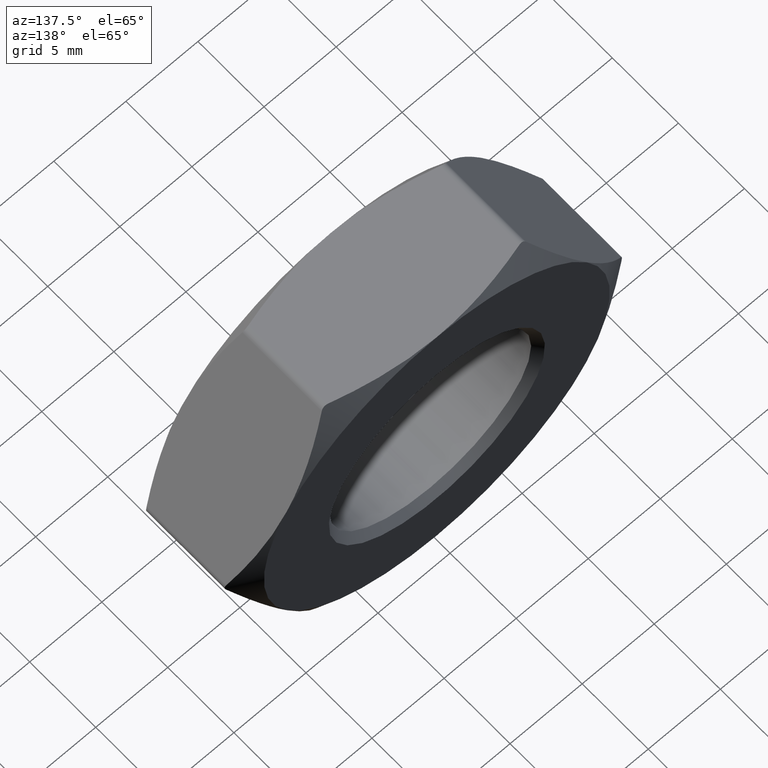
[diagram: clean part render]
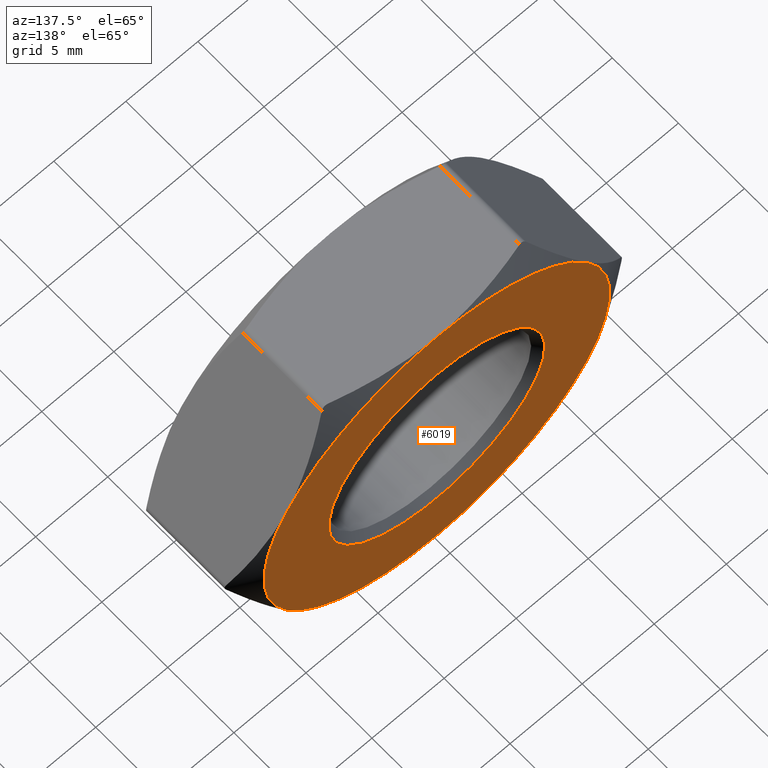
[diagram: same view with one face highlighted and labeled with its STEP entity id]
A machine part, auxiliary view. The second image highlights one B-rep face of the part: STEP entity #6019.
In plain terms, the highlighted planar face has unit normal (0, 1, 0).
Its self-contained STEP definition (entity closure, byte-faithful):
#250 = CIRCLE ( 'NONE', #11706, 12.00000000000000000 ) ;
#546 = AXIS2_PLACEMENT_3D ( 'NONE', #13417, #2774, #11683 ) ;
#681 = EDGE_CURVE ( 'NONE', #6699, #11227, #8912, .T. ) ;
#737 = CARTESIAN_POINT ( 'NONE',  ( -10.39230484541326600, 4.000000000000000000, -6.000000000000000000 ) ) ;
#1376 = CARTESIAN_POINT ( 'NONE',  ( -4.494986686778388400E-017, 4.000000000000000000, -12.00000000000000200 ) ) ;
#1406 = AXIS2_PLACEMENT_3D ( 'NONE', #7489, #7657, #12578 ) ;
#1551 = DIRECTION ( 'NONE',  ( -0.0000000000000000000, -1.000000000000000000, -0.0000000000000000000 ) ) ;
#2075 = DIRECTION ( 'NONE',  ( 0.0000000000000000000, 1.000000000000000000, 0.0000000000000000000 ) ) ;
#2191 = ORIENTED_EDGE ( 'NONE', *, *, #7693, .F. ) ;
#2497 = FACE_BOUND ( 'NONE', #14144, .T. ) ;
#2617 = AXIS2_PLACEMENT_3D ( 'NONE', #13523, #2075, #13576 ) ;
#2683 = DIRECTION ( 'NONE',  ( 0.0000000000000000000, 0.0000000000000000000, 1.000000000000000000 ) ) ;
#2774 = DIRECTION ( 'NONE',  ( -0.0000000000000000000, -1.000000000000000000, -0.0000000000000000000 ) ) ;
#2892 = DIRECTION ( 'NONE',  ( 0.0000000000000000000, 0.0000000000000000000, 1.000000000000000000 ) ) ;
#3147 = AXIS2_PLACEMENT_3D ( 'NONE', #5437, #5480, #2892 ) ;
#3354 = ORIENTED_EDGE ( 'NONE', *, *, #15058, .F. ) ;
#3917 = AXIS2_PLACEMENT_3D ( 'NONE', #15748, #1551, #15796 ) ;
#3918 = DIRECTION ( 'NONE',  ( -0.0000000000000000000, -1.000000000000000000, -0.0000000000000000000 ) ) ;
#4283 = CARTESIAN_POINT ( 'NONE',  ( 0.0000000000000000000, 4.000000000000000000, 7.500000000000003600 ) ) ;
#4402 = AXIS2_PLACEMENT_3D ( 'NONE', #11641, #10116, #6538 ) ;
#4968 = CARTESIAN_POINT ( 'NONE',  ( -4.494986686778388400E-017, 4.000000000000000000, 12.00000000000000200 ) ) ;
#5024 = VERTEX_POINT ( 'NONE', #4968 ) ;
#5134 = ORIENTED_EDGE ( 'NONE', *, *, #12779, .F. ) ;
#5357 = EDGE_CURVE ( 'NONE', #8774, #8774, #8529, .T. ) ;
#5437 = CARTESIAN_POINT ( 'NONE',  ( 0.0000000000000000000, 4.000000000000000000, 0.0000000000000000000 ) ) ;
#5480 = DIRECTION ( 'NONE',  ( -0.0000000000000000000, -1.000000000000000000, -0.0000000000000000000 ) ) ;
#6019 = ADVANCED_FACE ( 'NONE', ( #2497, #8951 ), #7138, .T. ) ;
#6062 = CARTESIAN_POINT ( 'NONE',  ( -4.494986686778388400E-017, 4.000000000000000000, 2.335663596253788600E-016 ) ) ;
#6372 = AXIS2_PLACEMENT_3D ( 'NONE', #6062, #7363, #13863 ) ;
#6383 = VERTEX_POINT ( 'NONE', #15902 ) ;
#6391 = ORIENTED_EDGE ( 'NONE', *, *, #681, .F. ) ;
#6538 = DIRECTION ( 'NONE',  ( 1.776356839400250500E-015, 0.0000000000000000000, 1.000000000000000000 ) ) ;
#6699 = VERTEX_POINT ( 'NONE', #12241 ) ;
#7138 = PLANE ( 'NONE',  #2617 ) ;
#7363 = DIRECTION ( 'NONE',  ( -0.0000000000000000000, -1.000000000000000000, -0.0000000000000000000 ) ) ;
#7489 = CARTESIAN_POINT ( 'NONE',  ( -4.494986686778388400E-017, 4.000000000000000000, 0.0000000000000000000 ) ) ;
#7657 = DIRECTION ( 'NONE',  ( 1.123746671694597100E-017, -1.000000000000000000, -0.0000000000000000000 ) ) ;
#7693 = EDGE_CURVE ( 'NONE', #12197, #6699, #250, .T. ) ;
#8529 = CIRCLE ( 'NONE', #3147, 7.500000000000003600 ) ;
#8774 = VERTEX_POINT ( 'NONE', #4283 ) ;
#8890 = ORIENTED_EDGE ( 'NONE', *, *, #9453, .F. ) ;
#8912 = CIRCLE ( 'NONE', #4402, 12.00000000000000000 ) ;
#8951 = FACE_OUTER_BOUND ( 'NONE', #13922, .T. ) ;
#9332 = CIRCLE ( 'NONE', #1406, 12.00000000000000200 ) ;
#9453 = EDGE_CURVE ( 'NONE', #11227, #5024, #9332, .T. ) ;
#10116 = DIRECTION ( 'NONE',  ( -0.0000000000000000000, -1.000000000000000000, -0.0000000000000000000 ) ) ;
#10342 = ORIENTED_EDGE ( 'NONE', *, *, #13302, .F. ) ;
#11227 = VERTEX_POINT ( 'NONE', #15768 ) ;
#11641 = CARTESIAN_POINT ( 'NONE',  ( -4.494986686778388400E-017, 4.000000000000000000, 2.335663596253788600E-016 ) ) ;
#11683 = DIRECTION ( 'NONE',  ( 0.0000000000000000000, 0.0000000000000000000, 1.000000000000000000 ) ) ;
#11706 = AXIS2_PLACEMENT_3D ( 'NONE', #14464, #3918, #2683 ) ;
#11738 = VERTEX_POINT ( 'NONE', #737 ) ;
#12197 = VERTEX_POINT ( 'NONE', #1376 ) ;
#12241 = CARTESIAN_POINT ( 'NONE',  ( 10.39230484541326400, 4.000000000000000000, -6.000000000000004400 ) ) ;
#12578 = DIRECTION ( 'NONE',  ( 1.000000000000000000, 0.0000000000000000000, 0.0000000000000000000 ) ) ;
#12779 = EDGE_CURVE ( 'NONE', #11738, #12197, #16759, .T. ) ;
#13302 = EDGE_CURVE ( 'NONE', #5024, #6383, #15303, .T. ) ;
#13417 = CARTESIAN_POINT ( 'NONE',  ( -4.494986686778388400E-017, 4.000000000000000000, 2.335663596253788600E-016 ) ) ;
#13523 = CARTESIAN_POINT ( 'NONE',  ( 0.0000000000000000000, 4.000000000000000000, 0.0000000000000000000 ) ) ;
#13576 = DIRECTION ( 'NONE',  ( 0.0000000000000000000, -0.0000000000000000000, 1.000000000000000000 ) ) ;
#13863 = DIRECTION ( 'NONE',  ( 1.776356839400250500E-015, 0.0000000000000000000, 1.000000000000000000 ) ) ;
#13922 = EDGE_LOOP ( 'NONE', ( #10342, #8890, #6391, #2191, #5134, #3354 ) ) ;
#14144 = EDGE_LOOP ( 'NONE', ( #16725 ) ) ;
#14464 = CARTESIAN_POINT ( 'NONE',  ( -4.494986686778388400E-017, 4.000000000000000000, 2.335663596253788600E-016 ) ) ;
#15058 = EDGE_CURVE ( 'NONE', #6383, #11738, #16291, .T. ) ;
#15303 = CIRCLE ( 'NONE', #546, 12.00000000000000000 ) ;
#15748 = CARTESIAN_POINT ( 'NONE',  ( -4.494986686778388400E-017, 4.000000000000000000, 2.335663596253788600E-016 ) ) ;
#15768 = CARTESIAN_POINT ( 'NONE',  ( 10.39230484541326600, 4.000000000000000000, 5.999999999999998200 ) ) ;
#15796 = DIRECTION ( 'NONE',  ( 0.0000000000000000000, 0.0000000000000000000, 1.000000000000000000 ) ) ;
#15902 = CARTESIAN_POINT ( 'NONE',  ( -10.39230484541326400, 4.000000000000000000, 6.000000000000001800 ) ) ;
#16291 = CIRCLE ( 'NONE', #3917, 12.00000000000000000 ) ;
#16725 = ORIENTED_EDGE ( 'NONE', *, *, #5357, .T. ) ;
#16759 = CIRCLE ( 'NONE', #6372, 12.00000000000000000 ) ;